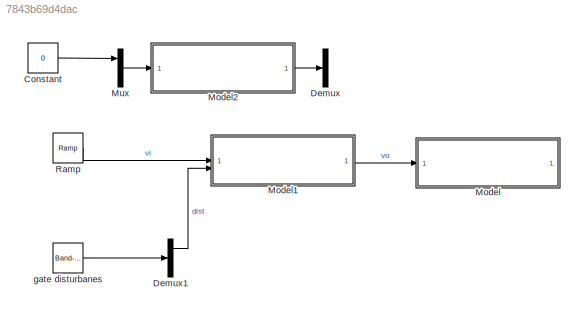
MODEL slx_7843b69d4dac
KIND model
CONFIG AbsTol = auto
CONFIG EnableMultiTasking = off
CONFIG FixedStep = 1e-5
CONFIG MaxStep = auto
CONFIG MinStep = auto
CONFIG RelTol = 1e-3
CONFIG SampleTimeConstraint = Unconstrained
CONFIG SolverName = ode14x
CONFIG StartTime = 0.0
CONFIG StopTime = 2
BLOCK [Constant] Constant
  Commented = on
  Value = 0
BLOCK [Demux] Demux
  Commented = on
  Outputs = 3
BLOCK [Demux] Demux1
  Outputs = 3
BLOCK [ModelReference] Model
  Ap = Ap
  Ct = Ct
  Fforce = Fforce
  Gmass = Gmass
  Kc = Kc
  Kq = Kq
  L_init = L_init
  ModelNameDialog = hydraulic.slx
  ModelReferenceVersion = 3.16
  Ve = Ve
  beta_e = beta_e
BLOCK [ModelReference] Model1
  Ksvl = Ksvl
  Ksvr = Ksvr
  ModelNameDialog = gate.slx
  ModelReferenceVersion = 3.12
  Xmax = Xmax
  Xmin = Xmin
  dl = dl
  dr = dr
  k = k
BLOCK [ModelReference] Model2
  Commented = on
  ModelNameDialog = compensator.slx
  ModelReferenceVersion = 1.24
BLOCK [Mux] Mux
  Commented = on
  DisplayOption = bar
  Inputs = 3
BLOCK [Reference] Ramp  REF=simulink/Sources/Ramp
  SourceBlock = simulink/Sources/Ramp
  SourceType = Ramp
BLOCK [Reference] gate disturbanes  REF=simulink/Sources/Band-Limited
White Noise
  SourceBlock = simulink/Sources/Band-Limited\nWhite Noise
  SourceType = Band-Limited White Noise.
LINE Constant:1 -> Mux:1
LINE Demux1:1 -> Model1:2
LINE Model1:1 -> Model:1
LINE Model2:1 -> Demux:1
LINE Mux:1 -> Model2:1
LINE Ramp:1 -> Model1:1
LINE gate disturbanes:1 -> Demux1:1
